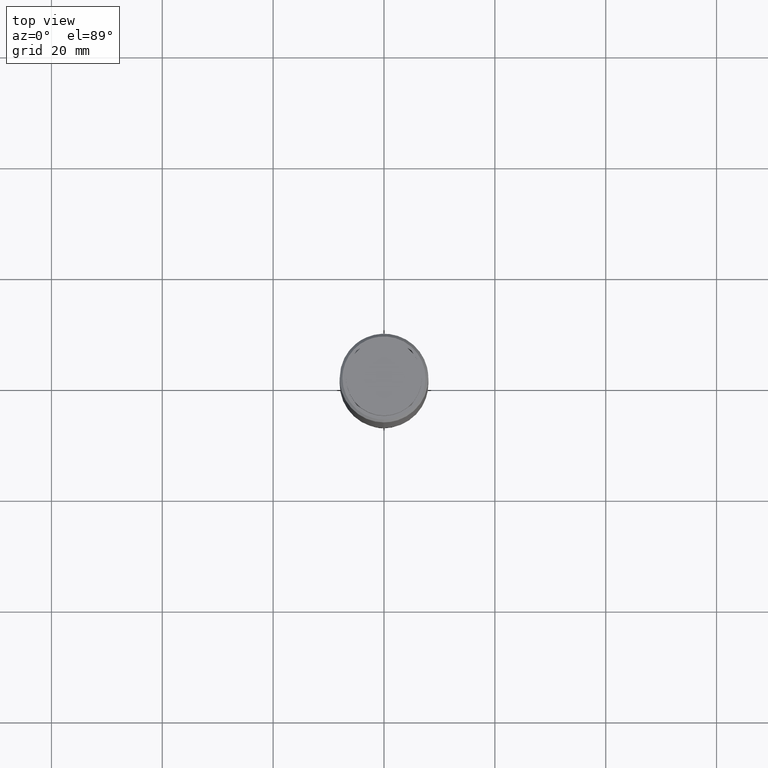
[diagram: clean part render]
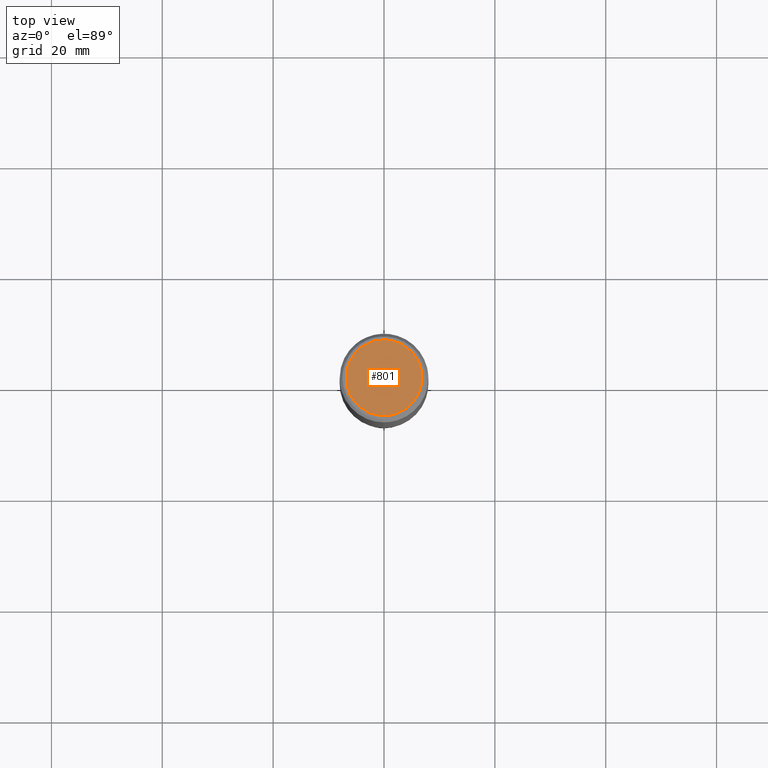
[diagram: same view with one face highlighted and labeled with its STEP entity id]
A machine part, top view. The second image highlights one B-rep face of the part: STEP entity #801.
In plain terms, the highlighted face is a freeform B-spline surface patch.
Its self-contained STEP definition (entity closure, byte-faithful):
#760=CARTESIAN_POINT('',(-7.520453062164778,-7.520453062164632,130.0));
#761=CARTESIAN_POINT('',(7.520453306689150,-7.520453062164632,130.0));
#762=CARTESIAN_POINT('',(-7.520453062164778,7.520453306689004,130.0));
#763=CARTESIAN_POINT('',(7.520453306689150,7.520453306689004,130.0));
#764=B_SPLINE_SURFACE_WITH_KNOTS('',1,1,((#760,#762),(#761,#763)),.UNSPECIFIED.,.F.,.F.,.U.,(2,2),(2,2),(0.0,15.040906368853930),(0.0,15.040906368853641),.UNSPECIFIED.);
#765=CARTESIAN_POINT('',(6.837397000000000,0.0,130.0));
#766=VERTEX_POINT('',#765);
#767=CARTESIAN_POINT('',(-6.837397000000000,0.0,130.0));
#768=VERTEX_POINT('',#767);
#769=CARTESIAN_POINT('',(6.837397000000000,0.0,130.0));
#770=CARTESIAN_POINT('',(6.837397000000000,-6.837397000000000,130.0));
#771=CARTESIAN_POINT('',(0.0,-6.837397000000000,130.0));
#772=CARTESIAN_POINT('',(-6.837397000000000,-6.837397000000000,130.0));
#773=CARTESIAN_POINT('',(-6.837397000000000,0.0,130.0));
#781=(BOUNDED_CURVE()B_SPLINE_CURVE(2,(#769,#770,#771,#772,#773),.UNSPECIFIED.,.F.,.U.)B_SPLINE_CURVE_WITH_KNOTS((3,2,3),(0.500000000000000,0.750000000000000,1.0),.UNSPECIFIED.)CURVE()GEOMETRIC_REPRESENTATION_ITEM()RATIONAL_B_SPLINE_CURVE((1.0,0.707106781186547,1.0,0.707106781186547,1.0))REPRESENTATION_ITEM(''));
#782=EDGE_CURVE('',#766,#768,#781,.T.);
#783=ORIENTED_EDGE('',*,*,#782,.F.);
#784=CARTESIAN_POINT('',(-6.837397000000000,0.0,130.0));
#785=CARTESIAN_POINT('',(-6.837397000000000,6.837397000000000,130.0));
#786=CARTESIAN_POINT('',(0.0,6.837397000000000,130.0));
#787=CARTESIAN_POINT('',(6.837397000000000,6.837397000000000,130.0));
#788=CARTESIAN_POINT('',(6.837397000000000,0.0,130.0));
#796=(BOUNDED_CURVE()B_SPLINE_CURVE(2,(#784,#785,#786,#787,#788),.UNSPECIFIED.,.F.,.U.)B_SPLINE_CURVE_WITH_KNOTS((3,2,3),(0.0,0.250000000000000,0.500000000000000),.UNSPECIFIED.)CURVE()GEOMETRIC_REPRESENTATION_ITEM()RATIONAL_B_SPLINE_CURVE((1.0,0.707106781186547,1.0,0.707106781186547,1.0))REPRESENTATION_ITEM(''));
#797=EDGE_CURVE('',#768,#766,#796,.T.);
#798=ORIENTED_EDGE('',*,*,#797,.F.);
#799=EDGE_LOOP('',(#783,#798));
#800=FACE_OUTER_BOUND('',#799,.T.);
#801=ADVANCED_FACE('',(#800),#764,.T.);